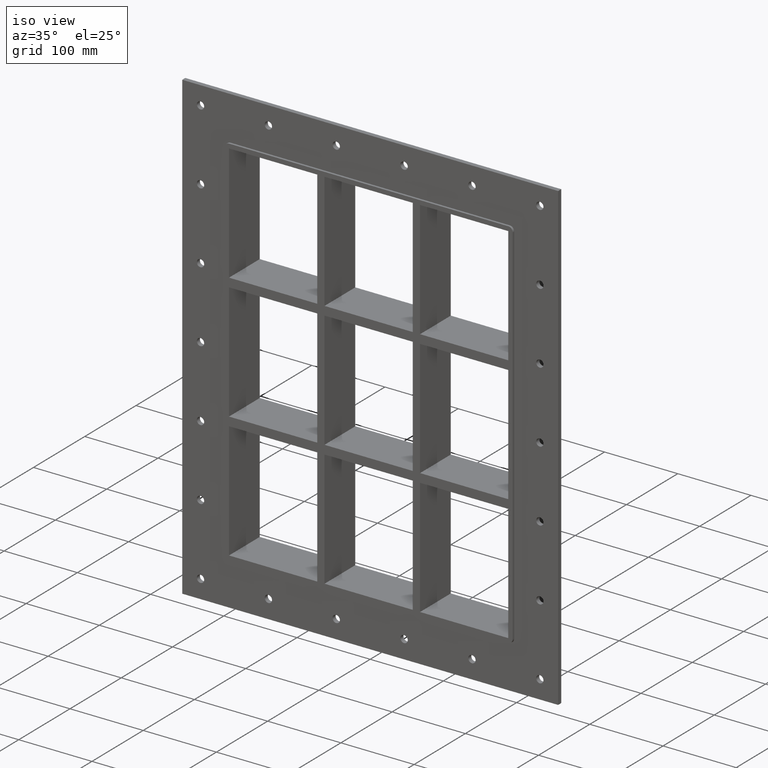
[diagram: clean part render]
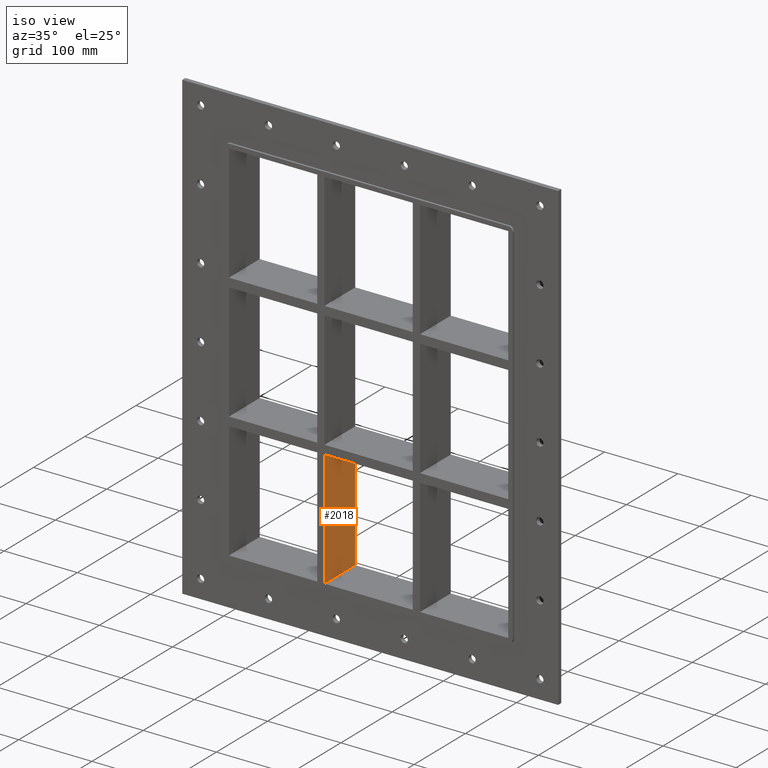
[diagram: same view with one face highlighted and labeled with its STEP entity id]
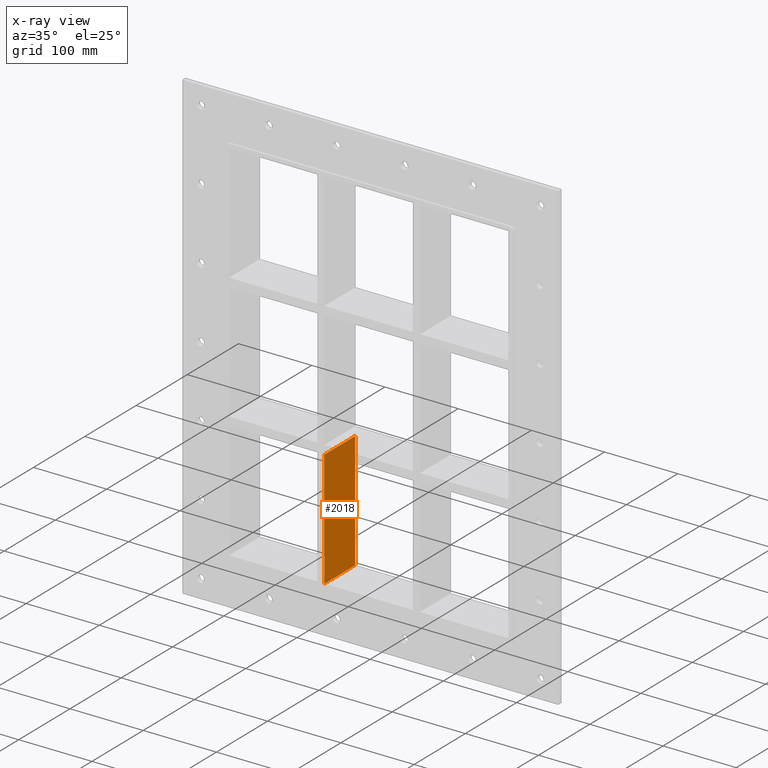
[diagram: x-ray of the same camera — body ghosted, the highlighted face saturated]
A machine part, iso view. The second image highlights one B-rep face of the part: STEP entity #2018.
The next image is the same camera in x-ray: the body ghosted, the highlighted face saturated — about 0% of this face is hidden behind the body in this view.
In plain terms, the highlighted planar face has unit normal (1, 0, 0).
Its self-contained STEP definition (entity closure, byte-faithful):
#1374=CARTESIAN_POINT('',(-60.249999999996362,57.0,-91.750000000009408));
#1375=VERTEX_POINT('',#1374);
#1382=CARTESIAN_POINT('',(-60.249999999996362,57.0,-251.24999999998423));
#1383=VERTEX_POINT('',#1382);
#1384=CARTESIAN_POINT('',(-60.249999999996362,57.0,-91.750000000009436));
#1385=DIRECTION('',(0.0,0.0,-1.0));
#1386=VECTOR('',#1385,159.49999999997476);
#1387=LINE('',#1384,#1386);
#1388=EDGE_CURVE('',#1375,#1383,#1387,.T.);
#1561=CARTESIAN_POINT('',(-60.249999999996362,-3.0,-251.24999999998423));
#1562=VERTEX_POINT('',#1561);
#1563=CARTESIAN_POINT('',(-60.249999999996362,57.000000000000007,-251.25));
#1564=DIRECTION('',(0.0,-1.0,0.0));
#1565=VECTOR('',#1564,60.000000000000007);
#1566=LINE('',#1563,#1565);
#1567=EDGE_CURVE('',#1383,#1562,#1566,.T.);
#1758=CARTESIAN_POINT('',(-60.249999999996362,-3.0,-91.750000000009408));
#1759=VERTEX_POINT('',#1758);
#1760=CARTESIAN_POINT('',(-60.249999999996362,-3.0,-91.750000000009436));
#1761=DIRECTION('',(0.0,0.0,-1.0));
#1762=VECTOR('',#1761,159.49999999997476);
#1763=LINE('',#1760,#1762);
#1764=EDGE_CURVE('',#1759,#1562,#1763,.T.);
#1888=CARTESIAN_POINT('',(-60.249999999996355,57.0,-91.750000000009379));
#1889=DIRECTION('',(0.0,-1.0,0.0));
#1890=VECTOR('',#1889,60.0);
#1891=LINE('',#1888,#1890);
#1892=EDGE_CURVE('',#1375,#1759,#1891,.T.);
#2007=CARTESIAN_POINT('',(-60.249999999996362,-3.0,251.25));
#2008=DIRECTION('',(1.0,0.0,0.0));
#2009=DIRECTION('',(0.0,0.0,-1.0));
#2010=AXIS2_PLACEMENT_3D('',#2007,#2008,#2009);
#2011=PLANE('',#2010);
#2012=ORIENTED_EDGE('',*,*,#1892,.T.);
#2013=ORIENTED_EDGE('',*,*,#1764,.T.);
#2014=ORIENTED_EDGE('',*,*,#1567,.F.);
#2015=ORIENTED_EDGE('',*,*,#1388,.F.);
#2016=EDGE_LOOP('',(#2012,#2013,#2014,#2015));
#2017=FACE_OUTER_BOUND('',#2016,.T.);
#2018=ADVANCED_FACE('',(#2017),#2011,.T.);